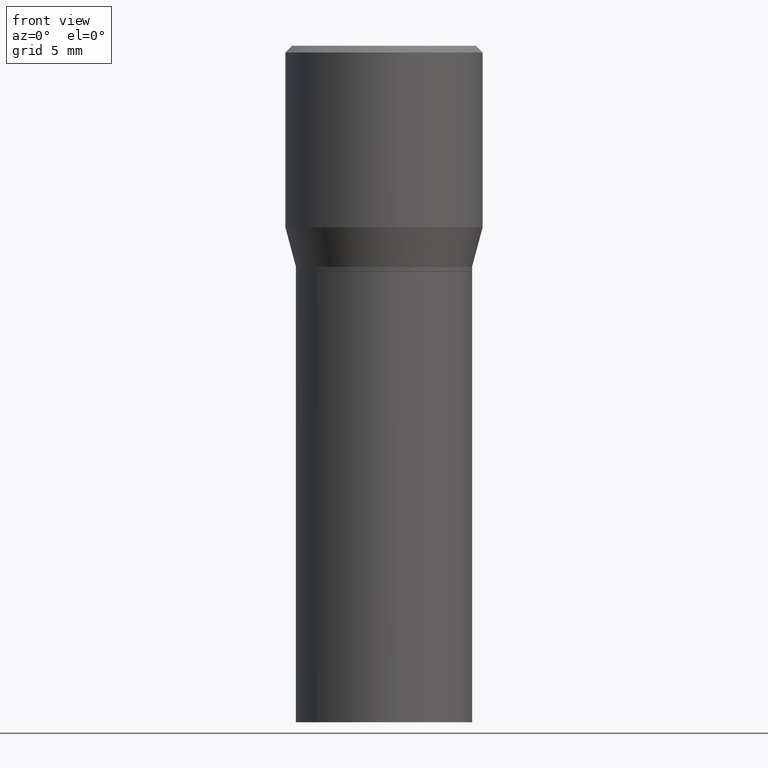
[diagram: clean part render]
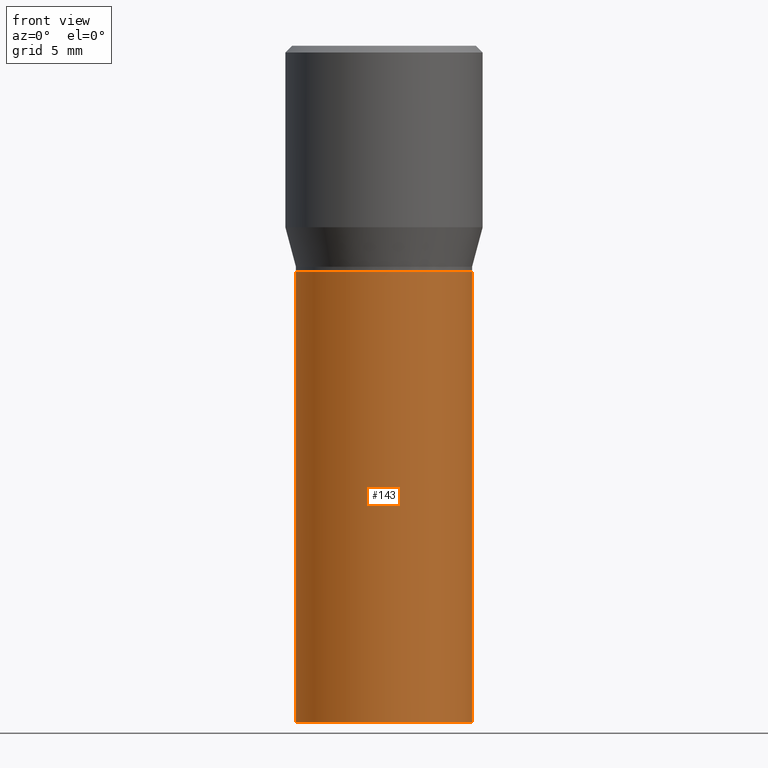
[diagram: same view with one face highlighted and labeled with its STEP entity id]
A machine part, front view. The second image highlights one B-rep face of the part: STEP entity #143.
In plain terms, the highlighted cylindrical surface (partial cylindrical patch) has radius 4.9606 mm, axis along (-0, 0, 1).
Its self-contained STEP definition (entity closure, byte-faithful):
#25 = DIRECTION ( 'NONE',  ( -2.445468806185136877E-29, 3.491481338843145188E-15, 1.000000000000000000 ) ) ;
#54 = LINE ( 'NONE', #167, #247 ) ;
#58 = FACE_OUTER_BOUND ( 'NONE', #120, .T. ) ;
#90 = DIRECTION ( 'NONE',  ( -2.445468806185136877E-29, 3.491481338843145188E-15, 1.000000000000000000 ) ) ;
#101 = EDGE_CURVE ( 'NONE', #379, #422, #281, .T. ) ;
#120 = EDGE_LOOP ( 'NONE', ( #129, #395, #316, #354 ) ) ;
#129 = ORIENTED_EDGE ( 'NONE', *, *, #272, .F. ) ;
#132 = CARTESIAN_POINT ( 'NONE',  ( 0.1953000000000000014, -3.109513280373700880E-15, -0.5000000000000001110 ) ) ;
#143 = ADVANCED_FACE ( 'NONE', ( #58 ), #378, .T. ) ;
#156 = VERTEX_POINT ( 'NONE', #228 ) ;
#167 = CARTESIAN_POINT ( 'NONE',  ( -0.1953000000000000014, 1.387689962939475673E-15, -9.606680231267831797E-30 ) ) ;
#174 = LINE ( 'NONE', #304, #184 ) ;
#176 = VERTEX_POINT ( 'NONE', #196 ) ;
#183 = CARTESIAN_POINT ( 'NONE',  ( 3.668203209277704895E-29, -5.237222008264718177E-15, -1.500000000000000222 ) ) ;
#184 = VECTOR ( 'NONE', #90, 39.37007874015748143 ) ;
#196 = CARTESIAN_POINT ( 'NONE',  ( 0.1953000000000000014, -6.600994619216846463E-15, -1.500000000000000222 ) ) ;
#202 = DIRECTION ( 'NONE',  ( -2.445468806185136597E-29, 3.491481338843145583E-15, 1.000000000000000000 ) ) ;
#206 = EDGE_CURVE ( 'NONE', #156, #176, #295, .T. ) ;
#214 = DIRECTION ( 'NONE',  ( 1.000000000000000000, -6.982962677686269077E-15, 0.000000000000000000 ) ) ;
#226 = CARTESIAN_POINT ( 'NONE',  ( -0.1953000000000000014, -2.103791375903670501E-15, -0.5000000000000001110 ) ) ;
#228 = CARTESIAN_POINT ( 'NONE',  ( -0.1953000000000000014, -2.103791375903670501E-15, -1.500000000000000222 ) ) ;
#247 = VECTOR ( 'NONE', #25, 39.37007874015748143 ) ;
#272 = EDGE_CURVE ( 'NONE', #156, #379, #54, .T. ) ;
#281 = CIRCLE ( 'NONE', #320, 0.1953000000000000014 ) ;
#284 = DIRECTION ( 'NONE',  ( -2.445468806185136597E-29, 3.491481338843145583E-15, 1.000000000000000000 ) ) ;
#295 = CIRCLE ( 'NONE', #394, 0.1953000000000000014 ) ;
#303 = DIRECTION ( 'NONE',  ( 1.000000000000000000, -6.982962677686265922E-15, 4.876176775795935793E-29 ) ) ;
#304 = CARTESIAN_POINT ( 'NONE',  ( 0.1953000000000000014, -1.363772610952127695E-15, 9.523173243129462177E-30 ) ) ;
#316 = ORIENTED_EDGE ( 'NONE', *, *, #347, .T. ) ;
#320 = AXIS2_PLACEMENT_3D ( 'NONE', #327, #284, #362 ) ;
#327 = CARTESIAN_POINT ( 'NONE',  ( 1.222734403092568719E-29, -1.745740669421573186E-15, -0.5000000000000001110 ) ) ;
#347 = EDGE_CURVE ( 'NONE', #176, #422, #174, .T. ) ;
#354 = ORIENTED_EDGE ( 'NONE', *, *, #101, .F. ) ;
#362 = DIRECTION ( 'NONE',  ( 1.000000000000000000, -6.982962677686264344E-15, 0.000000000000000000 ) ) ;
#378 = CYLINDRICAL_SURFACE ( 'NONE', #406, 0.1953000000000000014 ) ;
#379 = VERTEX_POINT ( 'NONE', #226 ) ;
#394 = AXIS2_PLACEMENT_3D ( 'NONE', #183, #429, #214 ) ;
#395 = ORIENTED_EDGE ( 'NONE', *, *, #206, .T. ) ;
#406 = AXIS2_PLACEMENT_3D ( 'NONE', #443, #202, #303 ) ;
#422 = VERTEX_POINT ( 'NONE', #132 ) ;
#429 = DIRECTION ( 'NONE',  ( -2.445468806185136597E-29, 3.491481338843145583E-15, 1.000000000000000000 ) ) ;
#443 = CARTESIAN_POINT ( 'NONE',  ( 0.000000000000000000, 0.000000000000000000, 0.000000000000000000 ) ) ;